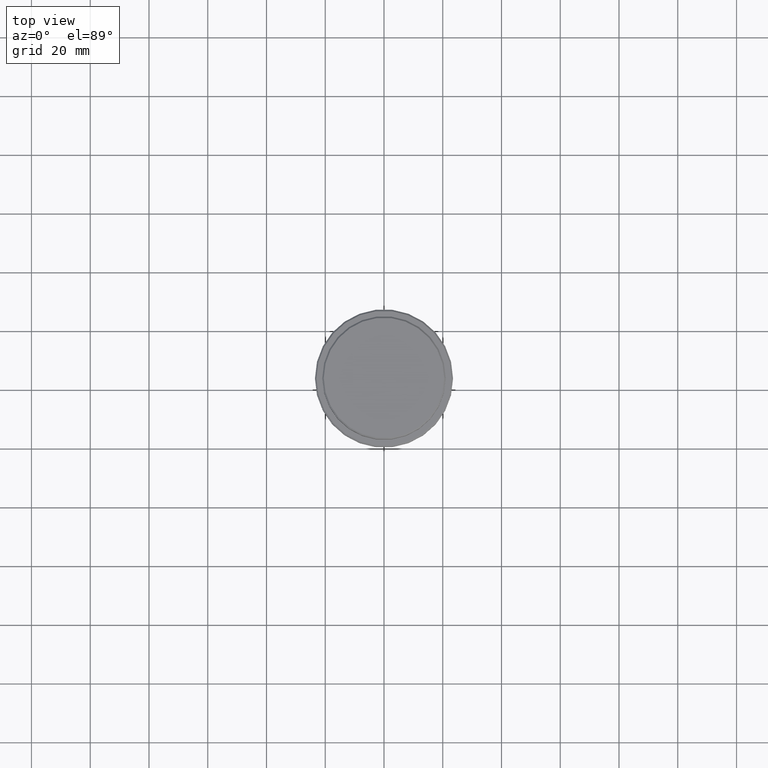
[diagram: clean part render]
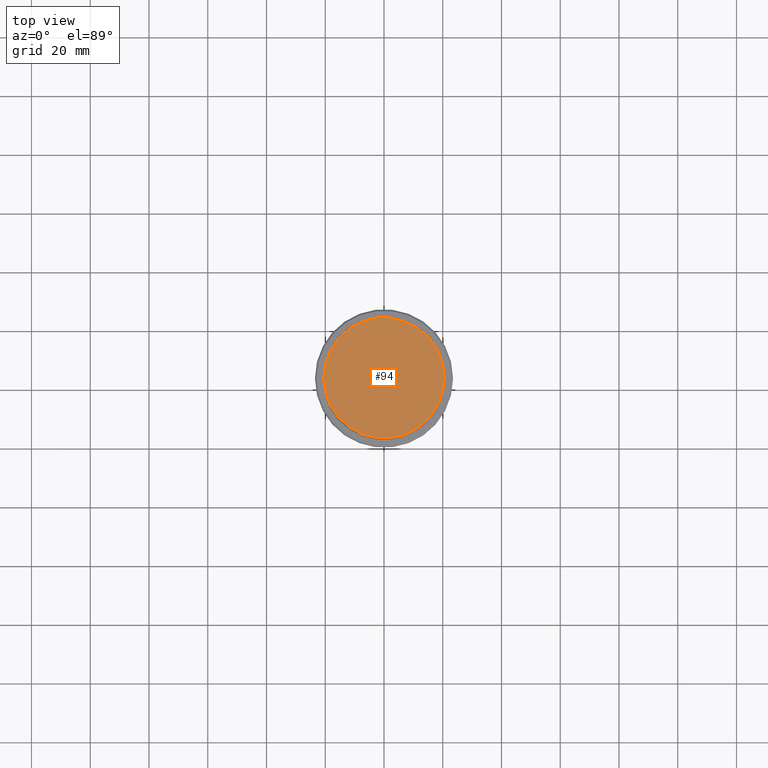
[diagram: same view with one face highlighted and labeled with its STEP entity id]
A machine part, top view. The second image highlights one B-rep face of the part: STEP entity #94.
In plain terms, the highlighted planar face has unit normal (0, -0, 1).
Its self-contained STEP definition (entity closure, byte-faithful):
#12 = DIRECTION ( 'NONE',  ( -0.000000000000000000, -0.000000000000000000, 1.000000000000000000 ) ) ;
#94 = ADVANCED_FACE ( 'NONE', ( #550 ), #973, .T. ) ;
#139 = AXIS2_PLACEMENT_3D ( 'NONE', #739, #1403, #214 ) ;
#178 = VERTEX_POINT ( 'NONE', #475 ) ;
#214 = DIRECTION ( 'NONE',  ( 1.000000000000000000, 0.000000000000000000, 0.000000000000000000 ) ) ;
#243 = DIRECTION ( 'NONE',  ( 1.000000000000000000, 0.000000000000000000, 0.000000000000000000 ) ) ;
#427 = DIRECTION ( 'NONE',  ( 0.000000000000000000, -0.000000000000000000, 1.000000000000000000 ) ) ;
#475 = CARTESIAN_POINT ( 'NONE',  ( -20.49999999999993605, 0.000000000000000000, 0.000000000000000000 ) ) ;
#498 = EDGE_CURVE ( 'NONE', #991, #178, #980, .T. ) ;
#550 = FACE_OUTER_BOUND ( 'NONE', #1274, .T. ) ;
#612 = ORIENTED_EDGE ( 'NONE', *, *, #498, .T. ) ;
#627 = AXIS2_PLACEMENT_3D ( 'NONE', #782, #427, #243 ) ;
#739 = CARTESIAN_POINT ( 'NONE',  ( 0.000000000000000000, 0.000000000000000000, 0.000000000000000000 ) ) ;
#755 = ORIENTED_EDGE ( 'NONE', *, *, #1377, .T. ) ;
#782 = CARTESIAN_POINT ( 'NONE',  ( 0.000000000000000000, 0.000000000000000000, 0.000000000000000000 ) ) ;
#859 = CARTESIAN_POINT ( 'NONE',  ( 20.49999999999993605, 2.541142108230753930E-15, 0.000000000000000000 ) ) ;
#885 = CARTESIAN_POINT ( 'NONE',  ( 0.000000000000000000, 0.000000000000000000, 0.000000000000000000 ) ) ;
#891 = CIRCLE ( 'NONE', #139, 20.49999999999993605 ) ;
#908 = AXIS2_PLACEMENT_3D ( 'NONE', #885, #12, #981 ) ;
#973 = PLANE ( 'NONE',  #627 ) ;
#980 = CIRCLE ( 'NONE', #908, 20.49999999999993605 ) ;
#981 = DIRECTION ( 'NONE',  ( 1.000000000000000000, 0.000000000000000000, 0.000000000000000000 ) ) ;
#991 = VERTEX_POINT ( 'NONE', #859 ) ;
#1274 = EDGE_LOOP ( 'NONE', ( #755, #612 ) ) ;
#1377 = EDGE_CURVE ( 'NONE', #178, #991, #891, .T. ) ;
#1403 = DIRECTION ( 'NONE',  ( -0.000000000000000000, -0.000000000000000000, 1.000000000000000000 ) ) ;